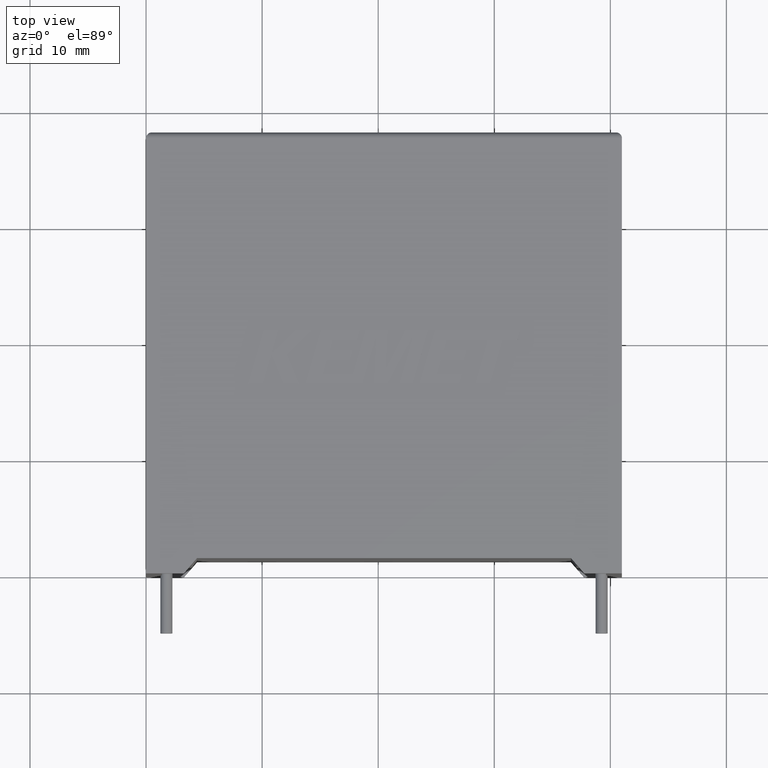
[diagram: clean part render]
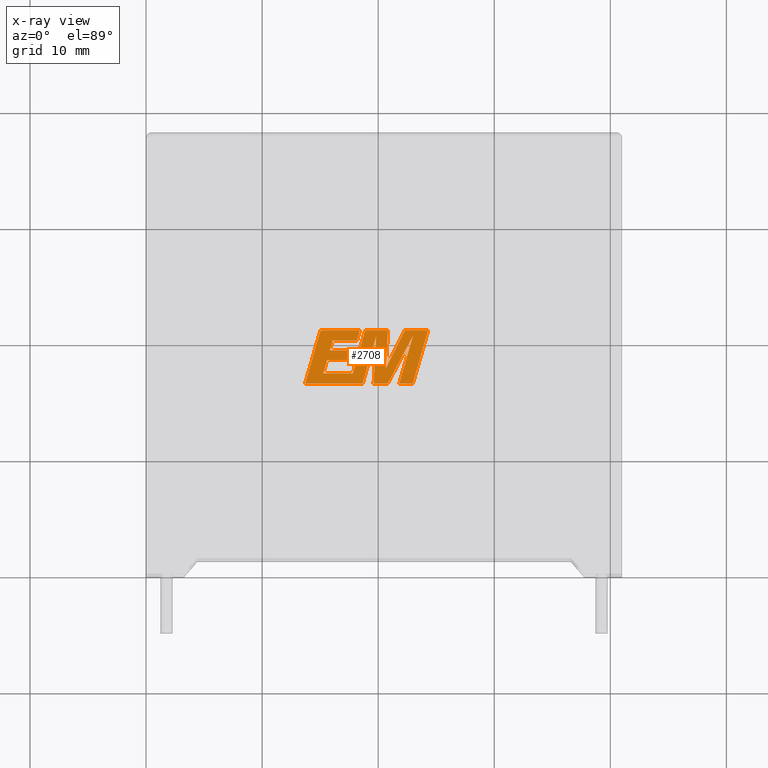
[diagram: x-ray — body ghosted, one internal face saturated and labeled with its STEP entity id]
A machine part, top view, then the same camera in x-ray: the body is ghosted and one INTERNAL B-rep face — a face not visible from any outside direction — is saturated and labeled: STEP entity #2708.
In plain terms, the highlighted planar face has unit normal (0, 0, -1).
Its self-contained STEP definition (entity closure, byte-faithful):
#12 = CARTESIAN_POINT ( 'NONE',  ( 20.82557925022102197, 16.35139999999985605, 21.00000000000000000 ) ) ;
#39 = ORIENTED_EDGE ( 'NONE', *, *, #183, .F. ) ;
#45 = ORIENTED_EDGE ( 'NONE', *, *, #1829, .F. ) ;
#66 = EDGE_CURVE ( 'NONE', #2790, #3191, #241, .T. ) ;
#67 = VERTEX_POINT ( 'NONE', #2245 ) ;
#73 = VECTOR ( 'NONE', #1664, 1000.000000000000000 ) ;
#85 = VECTOR ( 'NONE', #2272, 1000.000000000000227 ) ;
#104 = EDGE_CURVE ( 'NONE', #1661, #1756, #2655, .T. ) ;
#141 = VECTOR ( 'NONE', #360, 1000.000000000000000 ) ;
#180 = VERTEX_POINT ( 'NONE', #2147 ) ;
#183 = EDGE_CURVE ( 'NONE', #3198, #2029, #403, .T. ) ;
#219 = EDGE_LOOP ( 'NONE', ( #2568, #2855, #2065, #383, #711, #2900, #579, #1381, #3034, #2613, #1302, #39, #973, #2885, #2196, #1064, #1720, #45, #2673, #835, #2750, #1995, #2292 ) ) ;
#241 = LINE ( 'NONE', #2493, #1854 ) ;
#294 = VECTOR ( 'NONE', #2769, 1000.000000000000114 ) ;
#315 = VERTEX_POINT ( 'NONE', #1492 ) ;
#316 = DIRECTION ( 'NONE',  ( -0.2762517575166416606, -0.9610853065513833560, 0.000000000000000000 ) ) ;
#343 = EDGE_CURVE ( 'NONE', #2107, #950, #1005, .T. ) ;
#356 = CARTESIAN_POINT ( 'NONE',  ( 24.30187683563823242, 20.94374444033236671, 21.00000000000000000 ) ) ;
#358 = CARTESIAN_POINT ( 'NONE',  ( 17.56281153992090793, 18.36647296290508535, 21.00000000000000000 ) ) ;
#360 = DIRECTION ( 'NONE',  ( 1.000000000000000000, 0.000000000000000000, 0.000000000000000000 ) ) ;
#366 = LINE ( 'NONE', #1363, #2623 ) ;
#367 = VERTEX_POINT ( 'NONE', #730 ) ;
#383 = ORIENTED_EDGE ( 'NONE', *, *, #1132, .F. ) ;
#387 = DIRECTION ( 'NONE',  ( -0.05596501978069370192, -0.9984327301130239141, 0.000000000000000000 ) ) ;
#389 = EDGE_CURVE ( 'NONE', #180, #2790, #2071, .T. ) ;
#396 = VECTOR ( 'NONE', #2498, 1000.000000000000000 ) ;
#403 = LINE ( 'NONE', #1684, #445 ) ;
#423 = LINE ( 'NONE', #1415, #1244 ) ;
#434 = CARTESIAN_POINT ( 'NONE',  ( 15.26679291826804885, 17.22509631549937126, 21.00000000000000000 ) ) ;
#445 = VECTOR ( 'NONE', #1450, 1000.000000000000227 ) ;
#493 = CARTESIAN_POINT ( 'NONE',  ( 18.42335423661607052, 20.94374444033236671, 21.00000000000000000 ) ) ;
#501 = VECTOR ( 'NONE', #1688, 1000.000000000000000 ) ;
#509 = EDGE_CURVE ( 'NONE', #1322, #2046, #821, .T. ) ;
#538 = CARTESIAN_POINT ( 'NONE',  ( 18.65655867859033279, 16.35139999999985605, 21.00000000000000000 ) ) ;
#553 = CARTESIAN_POINT ( 'NONE',  ( 20.83712997961169577, 20.94374444033236671, 21.00000000000000000 ) ) ;
#577 = EDGE_CURVE ( 'NONE', #2136, #2680, #1976, .T. ) ;
#579 = ORIENTED_EDGE ( 'NONE', *, *, #1002, .F. ) ;
#583 = LINE ( 'NONE', #1795, #85 ) ;
#593 = EDGE_CURVE ( 'NONE', #1756, #1325, #2933, .T. ) ;
#596 = DIRECTION ( 'NONE',  ( -1.000000000000000000, 0.000000000000000000, 0.000000000000000000 ) ) ;
#606 = CARTESIAN_POINT ( 'NONE',  ( 22.98154394755123775, 16.35139999999985605, 21.00000000000000000 ) ) ;
#652 = CARTESIAN_POINT ( 'NONE',  ( 15.03068406423120607, 20.94374444033236671, 21.00000000000000000 ) ) ;
#665 = DIRECTION ( 'NONE',  ( -0.2765379750249962743, -0.9610029908221277006, 0.000000000000000000 ) ) ;
#667 = VECTOR ( 'NONE', #1020, 1000.000000000000000 ) ;
#711 = ORIENTED_EDGE ( 'NONE', *, *, #343, .F. ) ;
#730 = CARTESIAN_POINT ( 'NONE',  ( 16.08276411681820761, 20.06961525628180354, 21.00000000000000000 ) ) ;
#774 = VECTOR ( 'NONE', #1373, 1000.000000000000000 ) ;
#801 = EDGE_CURVE ( 'NONE', #3104, #315, #366, .T. ) ;
#821 = LINE ( 'NONE', #1584, #3026 ) ;
#835 = ORIENTED_EDGE ( 'NONE', *, *, #801, .F. ) ;
#869 = VERTEX_POINT ( 'NONE', #2551 ) ;
#950 = VERTEX_POINT ( 'NONE', #1167 ) ;
#973 = ORIENTED_EDGE ( 'NONE', *, *, #2067, .F. ) ;
#979 = CARTESIAN_POINT ( 'NONE',  ( 13.70919220179650466, 16.35139999999985605, 21.00000000000000000 ) ) ;
#986 = DIRECTION ( 'NONE',  ( -1.000000000000000000, 0.000000000000000000, 0.000000000000000000 ) ) ;
#987 = VECTOR ( 'NONE', #2902, 1000.000000000000114 ) ;
#1002 = EDGE_CURVE ( 'NONE', #2799, #67, #2187, .T. ) ;
#1005 = LINE ( 'NONE', #12, #1327 ) ;
#1020 = DIRECTION ( 'NONE',  ( -1.000000000000000000, 0.000000000000000000, 0.000000000000000000 ) ) ;
#1024 = EDGE_CURVE ( 'NONE', #2667, #869, #2909, .T. ) ;
#1064 = ORIENTED_EDGE ( 'NONE', *, *, #1437, .F. ) ;
#1071 = EDGE_CURVE ( 'NONE', #67, #2107, #2191, .T. ) ;
#1090 = CARTESIAN_POINT ( 'NONE',  ( 16.08276411681820761, 20.06961525628180354, 21.00000000000000000 ) ) ;
#1096 = VERTEX_POINT ( 'NONE', #2401 ) ;
#1132 = EDGE_CURVE ( 'NONE', #950, #1322, #2864, .T. ) ;
#1141 = PLANE ( 'NONE',  #3192 ) ;
#1167 = CARTESIAN_POINT ( 'NONE',  ( 22.99427866130718812, 20.45953208405155976, 21.00000000000000000 ) ) ;
#1173 = CARTESIAN_POINT ( 'NONE',  ( 19.83047028548635282, 20.43984354634564582, 21.00000000000000000 ) ) ;
#1244 = VECTOR ( 'NONE', #2436, 1000.000000000000000 ) ;
#1256 = CARTESIAN_POINT ( 'NONE',  ( 15.59200287812566899, 18.36647296290508535, 21.00000000000000000 ) ) ;
#1265 = DIRECTION ( 'NONE',  ( -0.4443210308329518243, -0.8958676361826802825, 0.000000000000000000 ) ) ;
#1269 = DIRECTION ( 'NONE',  ( 0.2759782365590697784, 0.9611638845408966292, 0.000000000000000000 ) ) ;
#1300 = CARTESIAN_POINT ( 'NONE',  ( 20.66052154424958331, 17.66291456777220503, 21.00000000000000000 ) ) ;
#1302 = ORIENTED_EDGE ( 'NONE', *, *, #2754, .F. ) ;
#1322 = VERTEX_POINT ( 'NONE', #2293 ) ;
#1325 = VERTEX_POINT ( 'NONE', #538 ) ;
#1327 = VECTOR ( 'NONE', #2491, 1000.000000000000000 ) ;
#1350 = CARTESIAN_POINT ( 'NONE',  ( -0.4984593669328484244, 1.487473959261242928, 21.00000000000000000 ) ) ;
#1363 = CARTESIAN_POINT ( 'NONE',  ( 18.88141295378719420, 20.94374444033236671, 21.00000000000000000 ) ) ;
#1373 = DIRECTION ( 'NONE',  ( 0.2746459304916892830, 0.9615454294334481178, 0.000000000000000000 ) ) ;
#1381 = ORIENTED_EDGE ( 'NONE', *, *, #2635, .F. ) ;
#1393 = CARTESIAN_POINT ( 'NONE',  ( 15.26679291826804885, 17.22509631549937126, 21.00000000000000000 ) ) ;
#1406 = CARTESIAN_POINT ( 'NONE',  ( 20.66052154424958331, 17.66291456777220503, 21.00000000000000000 ) ) ;
#1415 = CARTESIAN_POINT ( 'NONE',  ( 18.42335423661607052, 20.94374444033236671, 21.00000000000000000 ) ) ;
#1428 = CARTESIAN_POINT ( 'NONE',  ( 19.60130129188015502, 16.35139999999985605, 21.00000000000000000 ) ) ;
#1437 = EDGE_CURVE ( 'NONE', #2680, #2667, #3178, .T. ) ;
#1450 = DIRECTION ( 'NONE',  ( 0.2732148821746286926, 0.9619530280415482526, 0.000000000000000000 ) ) ;
#1484 = CARTESIAN_POINT ( 'NONE',  ( 17.83913527585904291, 16.35139999999985605, 21.00000000000000000 ) ) ;
#1492 = CARTESIAN_POINT ( 'NONE',  ( 17.81253480835259850, 17.22509631549937126, 21.00000000000000000 ) ) ;
#1536 = EDGE_CURVE ( 'NONE', #1096, #3104, #1551, .T. ) ;
#1551 = LINE ( 'NONE', #553, #667 ) ;
#1577 = CARTESIAN_POINT ( 'NONE',  ( 15.59200287812566899, 18.36647296290508535, 21.00000000000000000 ) ) ;
#1582 = CARTESIAN_POINT ( 'NONE',  ( 17.80530171436848264, 19.21543991648476180, 21.00000000000000000 ) ) ;
#1584 = CARTESIAN_POINT ( 'NONE',  ( 21.81455823761166357, 16.35139999999985605, 21.00000000000000000 ) ) ;
#1607 = DIRECTION ( 'NONE',  ( -1.000000000000000000, 0.000000000000000000, 0.000000000000000000 ) ) ;
#1623 = FACE_OUTER_BOUND ( 'NONE', #219, .T. ) ;
#1647 = CARTESIAN_POINT ( 'NONE',  ( 22.99427866130718812, 20.45953208405155976, 21.00000000000000000 ) ) ;
#1661 = VERTEX_POINT ( 'NONE', #652 ) ;
#1664 = DIRECTION ( 'NONE',  ( 1.000000000000000000, 0.000000000000000000, 0.000000000000000000 ) ) ;
#1684 = CARTESIAN_POINT ( 'NONE',  ( 18.17508317237085436, 20.06961525628180354, 21.00000000000000000 ) ) ;
#1688 = DIRECTION ( 'NONE',  ( -1.000000000000000000, 0.000000000000000000, 0.000000000000000000 ) ) ;
#1701 = CARTESIAN_POINT ( 'NONE',  ( 17.80530171436848264, 19.21543991648476180, 21.00000000000000000 ) ) ;
#1720 = ORIENTED_EDGE ( 'NONE', *, *, #577, .F. ) ;
#1749 = LINE ( 'NONE', #1300, #294 ) ;
#1756 = VERTEX_POINT ( 'NONE', #979 ) ;
#1757 = VECTOR ( 'NONE', #2714, 1000.000000000000000 ) ;
#1795 = CARTESIAN_POINT ( 'NONE',  ( 15.83421378253492939, 19.21543991648476180, 21.00000000000000000 ) ) ;
#1829 = EDGE_CURVE ( 'NONE', #2179, #2136, #2127, .T. ) ;
#1841 = DIRECTION ( 'NONE',  ( 0.000000000000000000, 0.000000000000000000, -1.000000000000000000 ) ) ;
#1854 = VECTOR ( 'NONE', #1265, 1000.000000000000000 ) ;
#1879 = CARTESIAN_POINT ( 'NONE',  ( 17.56281153992090793, 18.36647296290508535, 21.00000000000000000 ) ) ;
#1916 = VECTOR ( 'NONE', #387, 1000.000000000000114 ) ;
#1962 = VECTOR ( 'NONE', #665, 1000.000000000000114 ) ;
#1976 = LINE ( 'NONE', #1256, #1757 ) ;
#1995 = ORIENTED_EDGE ( 'NONE', *, *, #2629, .F. ) ;
#2029 = VERTEX_POINT ( 'NONE', #493 ) ;
#2046 = VERTEX_POINT ( 'NONE', #2730 ) ;
#2061 = EDGE_CURVE ( 'NONE', #2046, #180, #3075, .T. ) ;
#2065 = ORIENTED_EDGE ( 'NONE', *, *, #509, .F. ) ;
#2067 = EDGE_CURVE ( 'NONE', #367, #3198, #2802, .T. ) ;
#2071 = LINE ( 'NONE', #356, #2162 ) ;
#2107 = VERTEX_POINT ( 'NONE', #2589 ) ;
#2127 = LINE ( 'NONE', #434, #987 ) ;
#2136 = VERTEX_POINT ( 'NONE', #1577 ) ;
#2147 = CARTESIAN_POINT ( 'NONE',  ( 24.30187683563823242, 20.94374444033236671, 21.00000000000000000 ) ) ;
#2149 = CARTESIAN_POINT ( 'NONE',  ( 18.17508317237085436, 20.06961525628180354, 21.00000000000000000 ) ) ;
#2162 = VECTOR ( 'NONE', #1607, 1000.000000000000000 ) ;
#2179 = VERTEX_POINT ( 'NONE', #1393 ) ;
#2182 = VECTOR ( 'NONE', #3013, 1000.000000000000227 ) ;
#2187 = LINE ( 'NONE', #3157, #1916 ) ;
#2191 = LINE ( 'NONE', #1428, #73 ) ;
#2196 = ORIENTED_EDGE ( 'NONE', *, *, #1024, .F. ) ;
#2245 = CARTESIAN_POINT ( 'NONE',  ( 19.60130129188015502, 16.35139999999985605, 21.00000000000000000 ) ) ;
#2249 = DIRECTION ( 'NONE',  ( 1.000000000000000000, 0.000000000000000000, 0.000000000000000000 ) ) ;
#2252 = EDGE_CURVE ( 'NONE', #315, #2179, #2414, .T. ) ;
#2268 = LINE ( 'NONE', #2961, #2588 ) ;
#2272 = DIRECTION ( 'NONE',  ( 0.2793947940878294123, 0.9601763114327593884, 0.000000000000000000 ) ) ;
#2292 = ORIENTED_EDGE ( 'NONE', *, *, #66, .F. ) ;
#2293 = CARTESIAN_POINT ( 'NONE',  ( 21.81455823761166357, 16.35139999999985605, 21.00000000000000000 ) ) ;
#2401 = CARTESIAN_POINT ( 'NONE',  ( 20.83712997961169577, 20.94374444033236671, 21.00000000000000000 ) ) ;
#2414 = LINE ( 'NONE', #3186, #2585 ) ;
#2433 = DIRECTION ( 'NONE',  ( -0.2760118818968579912, -0.9611542233438683525, 0.000000000000000000 ) ) ;
#2436 = DIRECTION ( 'NONE',  ( -1.000000000000000000, 0.000000000000000000, 0.000000000000000000 ) ) ;
#2491 = DIRECTION ( 'NONE',  ( 0.4668459304955080436, 0.8843386665637680277, 0.000000000000000000 ) ) ;
#2493 = CARTESIAN_POINT ( 'NONE',  ( 22.28770579791339301, 20.94374444033236671, 21.00000000000000000 ) ) ;
#2498 = DIRECTION ( 'NONE',  ( 1.000000000000000000, 0.000000000000000000, 0.000000000000000000 ) ) ;
#2551 = CARTESIAN_POINT ( 'NONE',  ( 15.83421378253492939, 19.21543991648476180, 21.00000000000000000 ) ) ;
#2568 = ORIENTED_EDGE ( 'NONE', *, *, #389, .F. ) ;
#2585 = VECTOR ( 'NONE', #986, 1000.000000000000000 ) ;
#2588 = VECTOR ( 'NONE', #1269, 1000.000000000000227 ) ;
#2589 = CARTESIAN_POINT ( 'NONE',  ( 20.82557925022102197, 16.35139999999985605, 21.00000000000000000 ) ) ;
#2613 = ORIENTED_EDGE ( 'NONE', *, *, #104, .F. ) ;
#2623 = VECTOR ( 'NONE', #316, 1000.000000000000227 ) ;
#2629 = EDGE_CURVE ( 'NONE', #3191, #1096, #1749, .T. ) ;
#2635 = EDGE_CURVE ( 'NONE', #1325, #2799, #2268, .T. ) ;
#2655 = LINE ( 'NONE', #3164, #1962 ) ;
#2667 = VERTEX_POINT ( 'NONE', #1582 ) ;
#2673 = ORIENTED_EDGE ( 'NONE', *, *, #2252, .F. ) ;
#2680 = VERTEX_POINT ( 'NONE', #1879 ) ;
#2708 = ADVANCED_FACE ( 'NONE', ( #1623 ), #1141, .T. ) ;
#2714 = DIRECTION ( 'NONE',  ( 1.000000000000000000, 0.000000000000000000, 0.000000000000000000 ) ) ;
#2730 = CARTESIAN_POINT ( 'NONE',  ( 22.98154394755123775, 16.35139999999985605, 21.00000000000000000 ) ) ;
#2750 = ORIENTED_EDGE ( 'NONE', *, *, #1536, .F. ) ;
#2754 = EDGE_CURVE ( 'NONE', #2029, #1661, #423, .T. ) ;
#2769 = DIRECTION ( 'NONE',  ( 0.05375259206908577364, 0.9985542843760946141, 0.000000000000000000 ) ) ;
#2790 = VERTEX_POINT ( 'NONE', #3150 ) ;
#2799 = VERTEX_POINT ( 'NONE', #1173 ) ;
#2802 = LINE ( 'NONE', #1090, #141 ) ;
#2855 = ORIENTED_EDGE ( 'NONE', *, *, #2061, .F. ) ;
#2864 = LINE ( 'NONE', #1647, #3027 ) ;
#2885 = ORIENTED_EDGE ( 'NONE', *, *, #2963, .F. ) ;
#2900 = ORIENTED_EDGE ( 'NONE', *, *, #1071, .F. ) ;
#2902 = DIRECTION ( 'NONE',  ( 0.2740217765954066076, 0.9617234872620595842, 0.000000000000000000 ) ) ;
#2909 = LINE ( 'NONE', #1701, #501 ) ;
#2933 = LINE ( 'NONE', #1484, #396 ) ;
#2961 = CARTESIAN_POINT ( 'NONE',  ( 18.65655867859033279, 16.35139999999985605, 21.00000000000000000 ) ) ;
#2963 = EDGE_CURVE ( 'NONE', #869, #367, #583, .T. ) ;
#3013 = DIRECTION ( 'NONE',  ( 0.2763139702539113562, 0.9610674221107072812, 0.000000000000000000 ) ) ;
#3026 = VECTOR ( 'NONE', #2249, 1000.000000000000000 ) ;
#3027 = VECTOR ( 'NONE', #2433, 1000.000000000000114 ) ;
#3034 = ORIENTED_EDGE ( 'NONE', *, *, #593, .F. ) ;
#3075 = LINE ( 'NONE', #606, #2182 ) ;
#3104 = VERTEX_POINT ( 'NONE', #3120 ) ;
#3120 = CARTESIAN_POINT ( 'NONE',  ( 18.88141295378719420, 20.94374444033236671, 21.00000000000000000 ) ) ;
#3150 = CARTESIAN_POINT ( 'NONE',  ( 22.28770579791339301, 20.94374444033236671, 21.00000000000000000 ) ) ;
#3157 = CARTESIAN_POINT ( 'NONE',  ( 19.83047028548635282, 20.43984354634564582, 21.00000000000000000 ) ) ;
#3164 = CARTESIAN_POINT ( 'NONE',  ( 15.03068406423120607, 20.94374444033236671, 21.00000000000000000 ) ) ;
#3178 = LINE ( 'NONE', #358, #774 ) ;
#3186 = CARTESIAN_POINT ( 'NONE',  ( 17.81253480835259850, 17.22509631549937126, 21.00000000000000000 ) ) ;
#3191 = VERTEX_POINT ( 'NONE', #1406 ) ;
#3192 = AXIS2_PLACEMENT_3D ( 'NONE', #1350, #1841, #596 ) ;
#3198 = VERTEX_POINT ( 'NONE', #2149 ) ;